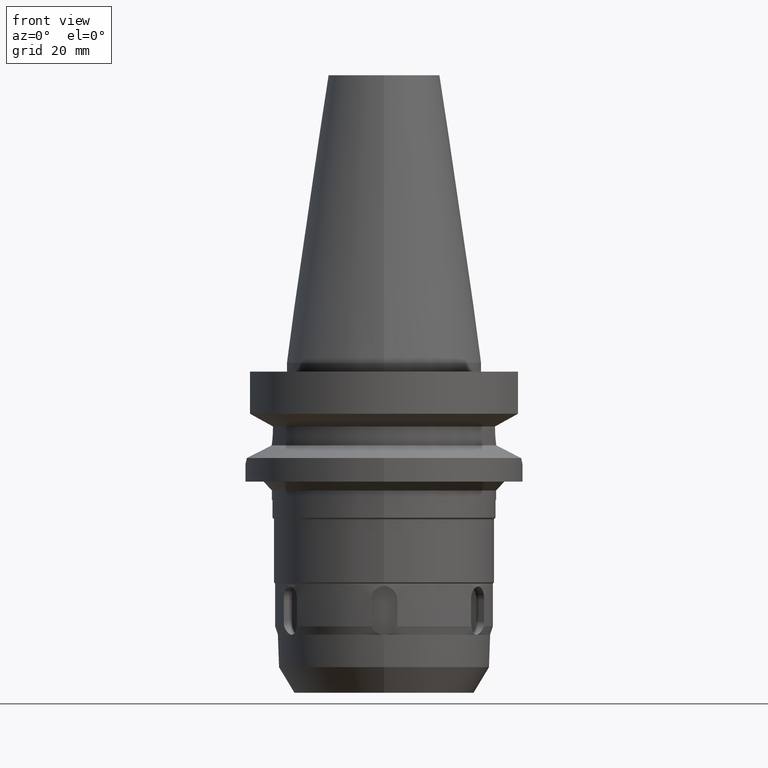
[diagram: clean part render]
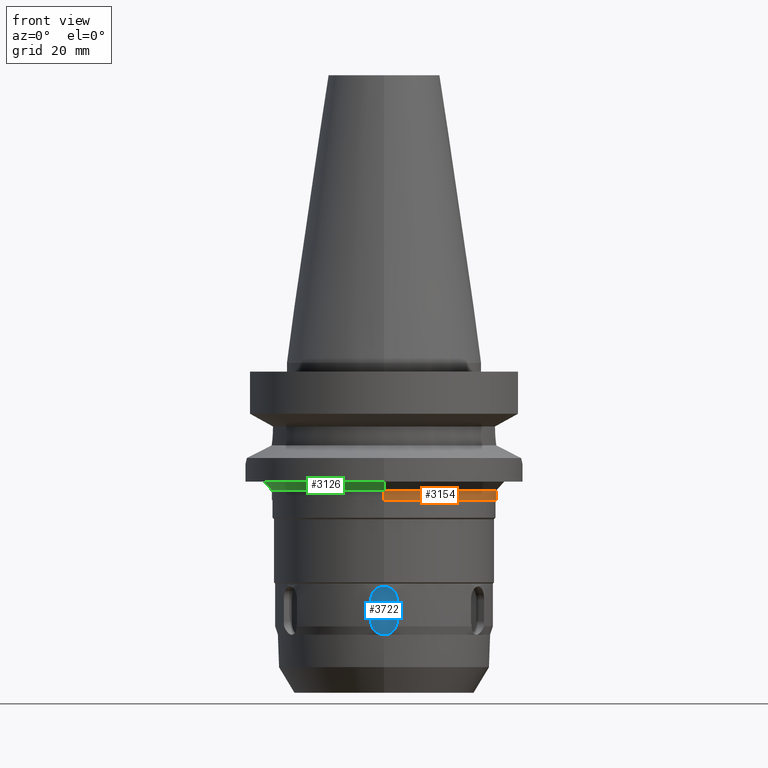
[diagram: same view with three faces highlighted in distinct colors, each labeled with its STEP entity id]
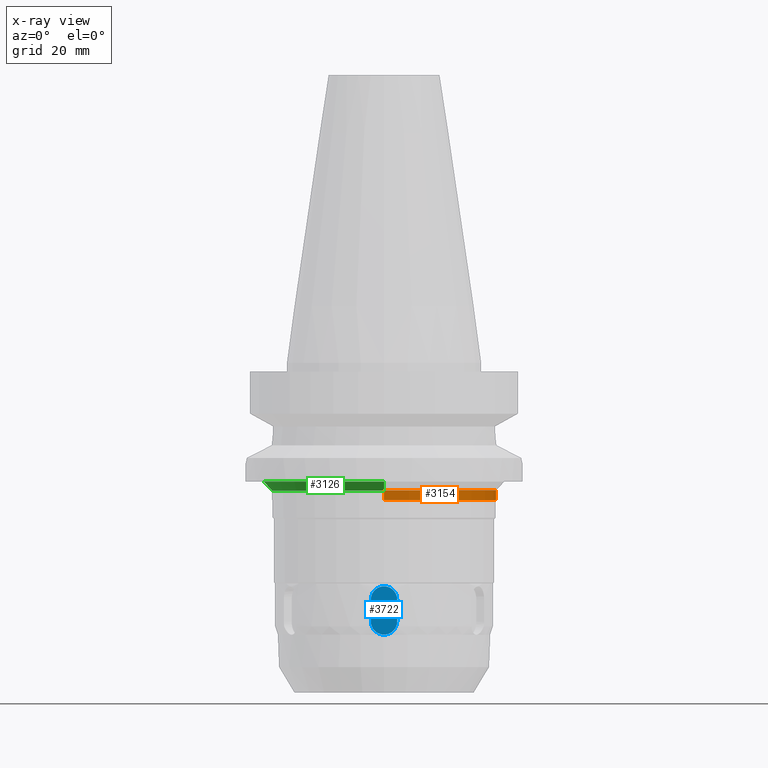
[diagram: x-ray of the same camera — body ghosted, the three highlighted faces saturated]
A machine part, front view with three faces highlighted in distinct colors.
The next image is the same camera in x-ray (body ghosted, the three faces saturated) — at least one of them is partly hidden behind the body in this view.
Their STEP definitions:

[orange] entity #3154 — the highlighted cylindrical surface (partial cylindrical patch) has radius 25.5 mm, axis along (0, 0, -1).
#682=CARTESIAN_POINT('',(0.E0,0.E0,-2.9E1));
#683=DIRECTION('',(0.E0,0.E0,-1.E0));
#684=DIRECTION('',(0.E0,1.E0,0.E0));
#685=AXIS2_PLACEMENT_3D('',#682,#683,#684);
#690=DIRECTION('',(0.E0,0.E0,-1.E0));
#691=VECTOR('',#690,2.2E0);
#692=CARTESIAN_POINT('',(0.E0,2.55E1,-2.9E1));
#693=LINE('',#692,#691);
#697=DIRECTION('',(0.E0,0.E0,-1.E0));
#698=VECTOR('',#697,2.2E0);
#699=CARTESIAN_POINT('',(0.E0,-2.55E1,-2.9E1));
#700=LINE('',#699,#698);
#704=CARTESIAN_POINT('',(0.E0,2.111536011090E-14,-3.12E1));
#705=DIRECTION('',(0.E0,0.E0,1.E0));
#706=DIRECTION('',(0.E0,-1.E0,0.E0));
#707=AXIS2_PLACEMENT_3D('',#704,#705,#706);
#2536=CARTESIAN_POINT('',(0.E0,-2.55E1,-3.12E1));
#2537=CARTESIAN_POINT('',(0.E0,2.55E1,-3.12E1));
#2538=VERTEX_POINT('',#2536);
#2539=VERTEX_POINT('',#2537);
#2540=CARTESIAN_POINT('',(0.E0,2.55E1,-2.9E1));
#2541=VERTEX_POINT('',#2540);
#2542=CARTESIAN_POINT('',(0.E0,-2.55E1,-2.9E1));
#2543=VERTEX_POINT('',#2542);
#3140=CARTESIAN_POINT('',(0.E0,2.111536011090E-14,7.242E1));
#3141=DIRECTION('',(0.E0,0.E0,-1.E0));
#3142=DIRECTION('',(0.E0,-1.E0,0.E0));
#3143=AXIS2_PLACEMENT_3D('',#3140,#3141,#3142);
#3144=CYLINDRICAL_SURFACE('',#3143,2.55E1);
#3146=ORIENTED_EDGE('',*,*,#3145,.T.);
#3148=ORIENTED_EDGE('',*,*,#3147,.F.);
#3150=ORIENTED_EDGE('',*,*,#3149,.F.);
#3151=ORIENTED_EDGE('',*,*,#3133,.F.);
#3152=EDGE_LOOP('',(#3146,#3148,#3150,#3151));
#3153=FACE_OUTER_BOUND('',#3152,.F.);
#686=CIRCLE('',#685,2.55E1);
#708=CIRCLE('',#707,2.55E1);
#3133=EDGE_CURVE('',#2541,#2543,#686,.T.);
#3145=EDGE_CURVE('',#2541,#2539,#693,.T.);
#3147=EDGE_CURVE('',#2538,#2539,#708,.T.);
#3149=EDGE_CURVE('',#2543,#2538,#700,.T.);
#3154=ADVANCED_FACE('',(#3153),#3144,.T.);

[blue] entity #3722 — the highlighted planar face has unit normal (0, -1, 0).
#1670=CARTESIAN_POINT('',(0.E0,-2.25E1,-5.38E1));
#1671=DIRECTION('',(0.E0,1.E0,0.E0));
#1672=DIRECTION('',(-1.E0,0.E0,0.E0));
#1673=AXIS2_PLACEMENT_3D('',#1670,#1671,#1672);
#1678=CARTESIAN_POINT('',(0.E0,-2.25E1,-5.38E1));
#1679=DIRECTION('',(0.E0,1.E0,0.E0));
#1680=DIRECTION('',(0.E0,0.E0,1.E0));
#1681=AXIS2_PLACEMENT_3D('',#1678,#1679,#1680);
#1686=DIRECTION('',(0.E0,0.E0,-1.E0));
#1687=VECTOR('',#1686,5.E0);
#1688=CARTESIAN_POINT('',(3.E0,-2.25E1,-5.38E1));
#1689=LINE('',#1688,#1687);
#1693=CARTESIAN_POINT('',(0.E0,-2.25E1,-5.88E1));
#1694=DIRECTION('',(0.E0,1.E0,0.E0));
#1695=DIRECTION('',(1.E0,0.E0,0.E0));
#1696=AXIS2_PLACEMENT_3D('',#1693,#1694,#1695);
#1701=CARTESIAN_POINT('',(0.E0,-2.25E1,-5.88E1));
#1702=DIRECTION('',(0.E0,1.E0,0.E0));
#1703=DIRECTION('',(0.E0,0.E0,-1.E0));
#1704=AXIS2_PLACEMENT_3D('',#1701,#1702,#1703);
#1709=DIRECTION('',(0.E0,0.E0,1.E0));
#1710=VECTOR('',#1709,5.E0);
#1711=CARTESIAN_POINT('',(-3.E0,-2.25E1,-5.88E1));
#1712=LINE('',#1711,#1710);
#2459=CARTESIAN_POINT('',(-3.E0,-2.25E1,-5.88E1));
#2460=VERTEX_POINT('',#2459);
#2461=CARTESIAN_POINT('',(0.E0,-2.25E1,-6.18E1));
#2462=VERTEX_POINT('',#2461);
#2463=CARTESIAN_POINT('',(3.E0,-2.25E1,-5.88E1));
#2464=VERTEX_POINT('',#2463);
#2514=CARTESIAN_POINT('',(3.E0,-2.25E1,-5.38E1));
#2515=VERTEX_POINT('',#2514);
#2516=CARTESIAN_POINT('',(0.E0,-2.25E1,-5.08E1));
#2517=VERTEX_POINT('',#2516);
#2518=CARTESIAN_POINT('',(-3.E0,-2.25E1,-5.38E1));
#2519=VERTEX_POINT('',#2518);
#3708=CARTESIAN_POINT('',(0.E0,-2.25E1,0.E0));
#3709=DIRECTION('',(0.E0,-1.E0,0.E0));
#3710=DIRECTION('',(0.E0,0.E0,-1.E0));
#3711=AXIS2_PLACEMENT_3D('',#3708,#3709,#3710);
#3712=PLANE('',#3711);
#3713=ORIENTED_EDGE('',*,*,#3687,.T.);
#3714=ORIENTED_EDGE('',*,*,#3685,.T.);
#3715=ORIENTED_EDGE('',*,*,#3702,.T.);
#3716=ORIENTED_EDGE('',*,*,#3572,.T.);
#3717=ORIENTED_EDGE('',*,*,#3570,.T.);
#3719=ORIENTED_EDGE('',*,*,#3718,.T.);
#3720=EDGE_LOOP('',(#3713,#3714,#3715,#3716,#3717,#3719));
#3721=FACE_OUTER_BOUND('',#3720,.F.);
#1674=CIRCLE('',#1673,3.E0);
#1682=CIRCLE('',#1681,3.E0);
#1697=CIRCLE('',#1696,3.E0);
#1705=CIRCLE('',#1704,3.E0);
#3570=EDGE_CURVE('',#2462,#2460,#1705,.T.);
#3572=EDGE_CURVE('',#2464,#2462,#1697,.T.);
#3685=EDGE_CURVE('',#2517,#2515,#1682,.T.);
#3687=EDGE_CURVE('',#2519,#2517,#1674,.T.);
#3702=EDGE_CURVE('',#2515,#2464,#1689,.T.);
#3718=EDGE_CURVE('',#2460,#2519,#1712,.T.);
#3722=ADVANCED_FACE('',(#3721),#3712,.T.);

[green] entity #3126 — the highlighted conical surface has half-angle 45 deg.
#644=CARTESIAN_POINT('',(0.E0,0.E0,-2.7E1));
#645=DIRECTION('',(0.E0,0.E0,-1.E0));
#646=DIRECTION('',(0.E0,-1.E0,0.E0));
#647=AXIS2_PLACEMENT_3D('',#644,#645,#646);
#660=DIRECTION('',(0.E0,7.071067811865E-1,-7.071067811866E-1));
#661=VECTOR('',#660,2.828427124746E0);
#662=CARTESIAN_POINT('',(0.E0,-2.75E1,-2.7E1));
#663=LINE('',#662,#661);
#667=CARTESIAN_POINT('',(0.E0,0.E0,-2.9E1));
#668=DIRECTION('',(0.E0,0.E0,-1.E0));
#669=DIRECTION('',(0.E0,-1.E0,0.E0));
#670=AXIS2_PLACEMENT_3D('',#667,#668,#669);
#675=DIRECTION('',(0.E0,-7.071067811865E-1,-7.071067811866E-1));
#676=VECTOR('',#675,2.828427124746E0);
#677=CARTESIAN_POINT('',(0.E0,2.75E1,-2.7E1));
#678=LINE('',#677,#676);
#2540=CARTESIAN_POINT('',(0.E0,2.55E1,-2.9E1));
#2541=VERTEX_POINT('',#2540);
#2542=CARTESIAN_POINT('',(0.E0,-2.55E1,-2.9E1));
#2543=VERTEX_POINT('',#2542);
#2544=CARTESIAN_POINT('',(0.E0,2.75E1,-2.7E1));
#2545=VERTEX_POINT('',#2544);
#2546=CARTESIAN_POINT('',(0.E0,-2.75E1,-2.7E1));
#2547=VERTEX_POINT('',#2546);
#3112=CARTESIAN_POINT('',(0.E0,0.E0,-2.8E1));
#3113=DIRECTION('',(0.E0,0.E0,1.E0));
#3114=DIRECTION('',(0.E0,1.E0,0.E0));
#3115=AXIS2_PLACEMENT_3D('',#3112,#3113,#3114);
#3116=CONICAL_SURFACE('',#3115,2.65E1,4.5E1);
#3118=ORIENTED_EDGE('',*,*,#3117,.F.);
#3119=ORIENTED_EDGE('',*,*,#3105,.F.);
#3121=ORIENTED_EDGE('',*,*,#3120,.T.);
#3123=ORIENTED_EDGE('',*,*,#3122,.T.);
#3124=EDGE_LOOP('',(#3118,#3119,#3121,#3123));
#3125=FACE_OUTER_BOUND('',#3124,.F.);
#648=CIRCLE('',#647,2.75E1);
#671=CIRCLE('',#670,2.55E1);
#3105=EDGE_CURVE('',#2547,#2545,#648,.T.);
#3117=EDGE_CURVE('',#2545,#2541,#678,.T.);
#3120=EDGE_CURVE('',#2547,#2543,#663,.T.);
#3122=EDGE_CURVE('',#2543,#2541,#671,.T.);
#3126=ADVANCED_FACE('',(#3125),#3116,.T.);